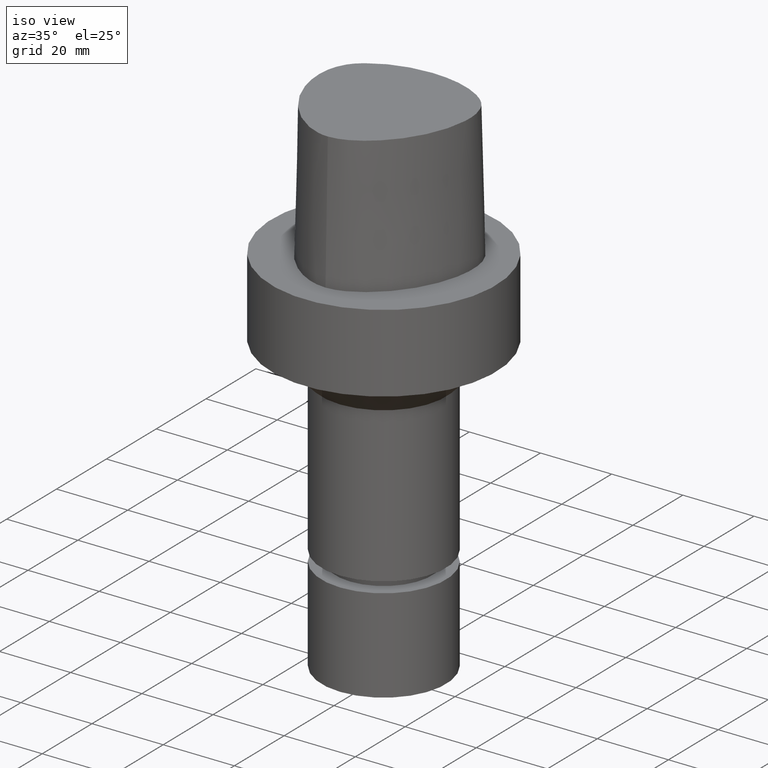
[diagram: clean part render]
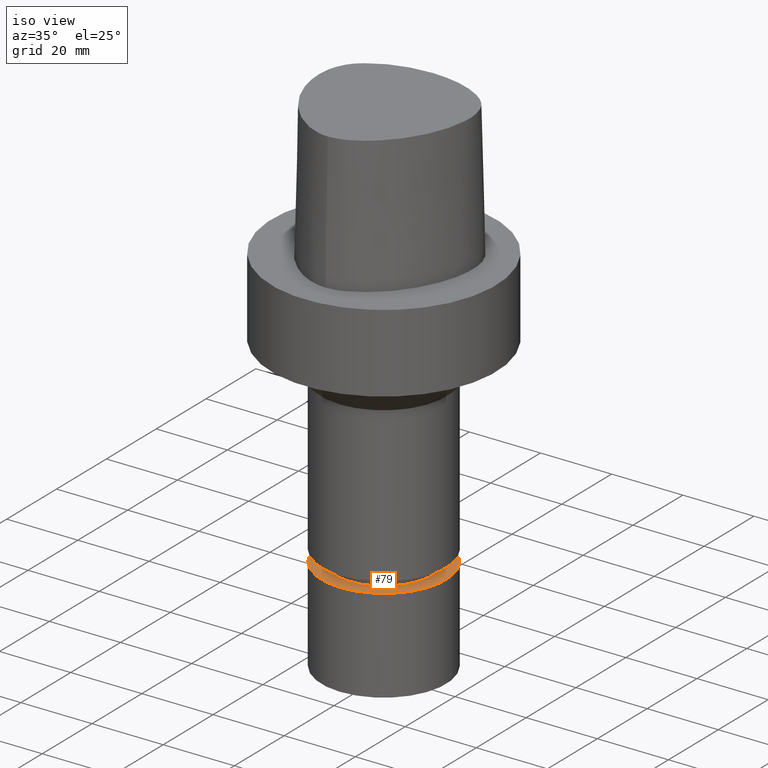
[diagram: same view with one face highlighted and labeled with its STEP entity id]
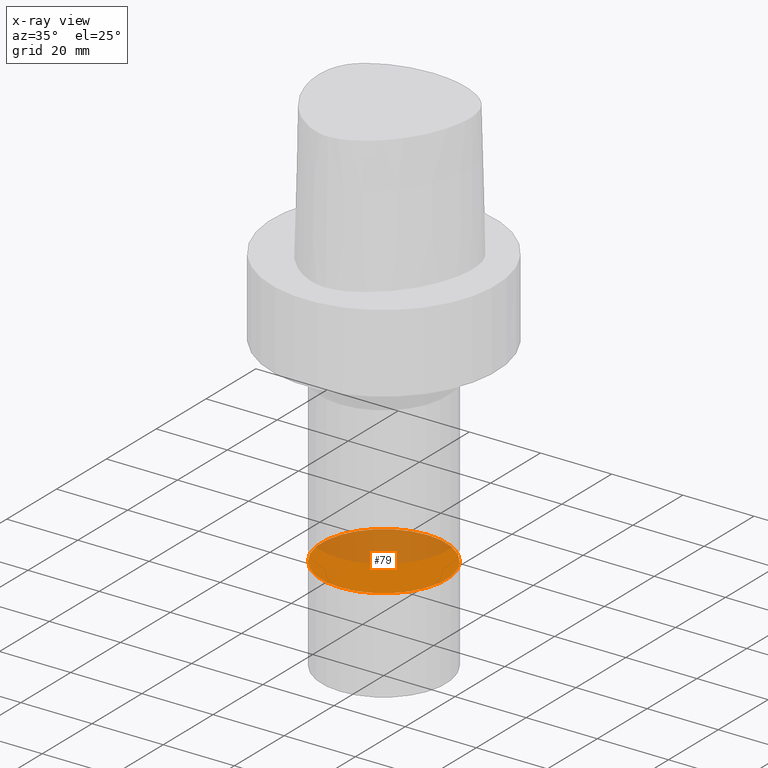
[diagram: x-ray of the same camera — body ghosted, the highlighted face saturated]
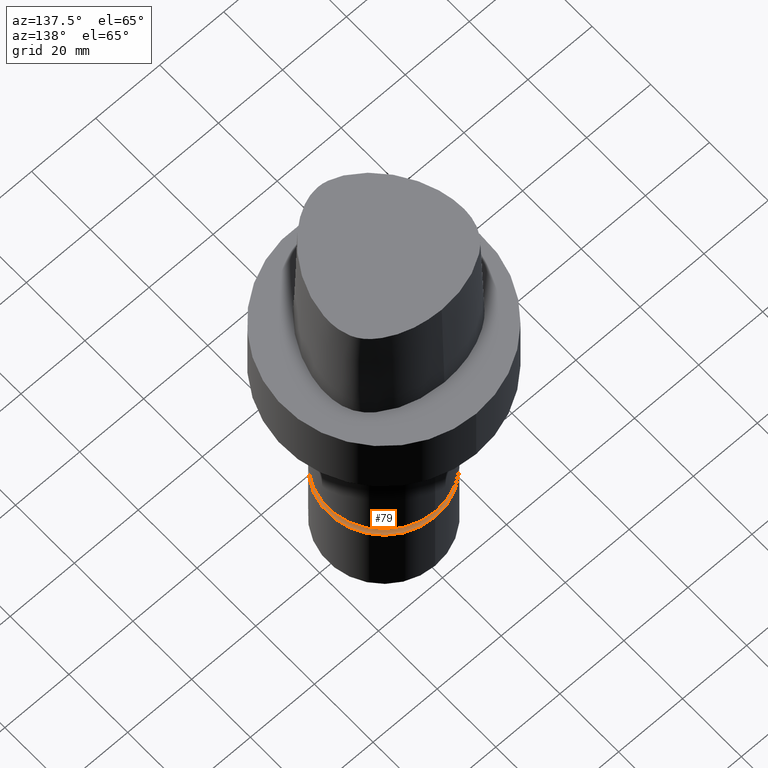
[diagram: same view with one face highlighted and labeled with its STEP entity id]
A machine part, iso view. The second image highlights one B-rep face of the part: STEP entity #79.
The next image is the same camera in x-ray: the body ghosted, the highlighted face saturated — about 45% of this face is hidden behind the body in this view.
A second angle (auxiliary view) of the same face is appended — the face is thin or edge-on in the first view.
In plain terms, the highlighted planar face has unit normal (-0, -0, 1).
Its self-contained STEP definition (entity closure, byte-faithful):
#79=ADVANCED_FACE('Unnamed[1]',(#201),#202,.T.);
#117=EDGE_CURVE('Unnamed[1]',#257,#257,#258,.T.);
#201=FACE_OUTER_BOUND('',#362,.T.);
#202=PLANE('',#363);
#257=VERTEX_POINT('',#518);
#258=CIRCLE('',#519,17.5);
#362=EDGE_LOOP('',(#746));
#363=AXIS2_PLACEMENT_3D('',#747,#748,#749);
#518=CARTESIAN_POINT('',(4.80673962098472E-015,17.5,-78.5000152587891));
#519=AXIS2_PLACEMENT_3D('',#806,#807,#808);
#746=ORIENTED_EDGE('',*,*,#117,.F.);
#747=CARTESIAN_POINT('',(4.80673962098472E-015,8.75000000000001,-78.5000152587891));
#748=DIRECTION('',(-6.12323399573677E-017,-1.22464679914735E-016,1.0));
#749=DIRECTION('',(1.23259516440783E-032,-1.0,-1.22464679914735E-016));
#806=CARTESIAN_POINT('',(4.80673962098472E-015,9.61347924196944E-015,-78.5000152587891));
#807=DIRECTION('',(6.12323399573677E-017,1.22464679914735E-016,-1.0));
#808=DIRECTION('',(-1.23259516440783E-032,1.0,1.22464679914735E-016));